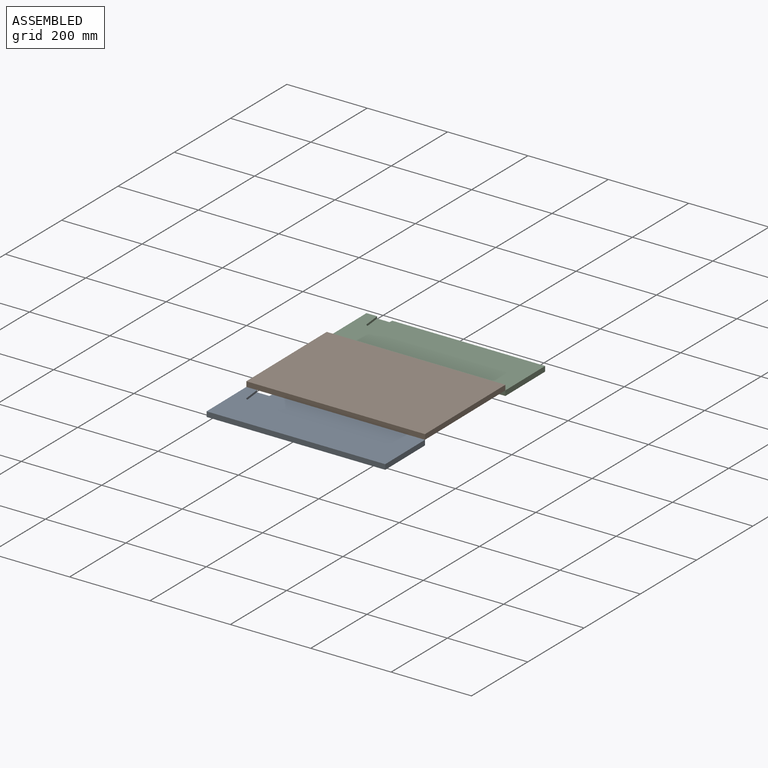
[diagram: assembled view]
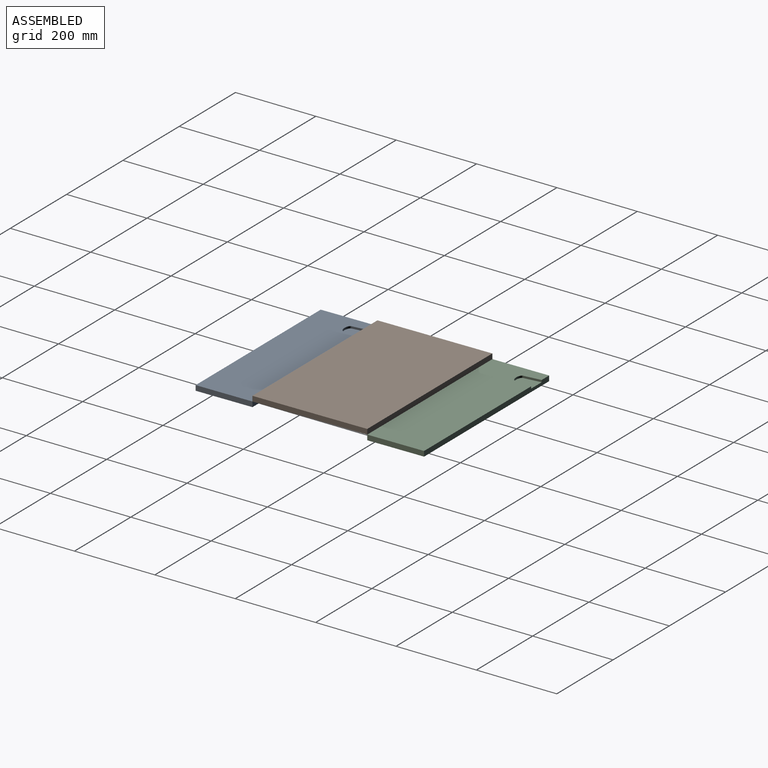
[diagram: assembled view, second angle]
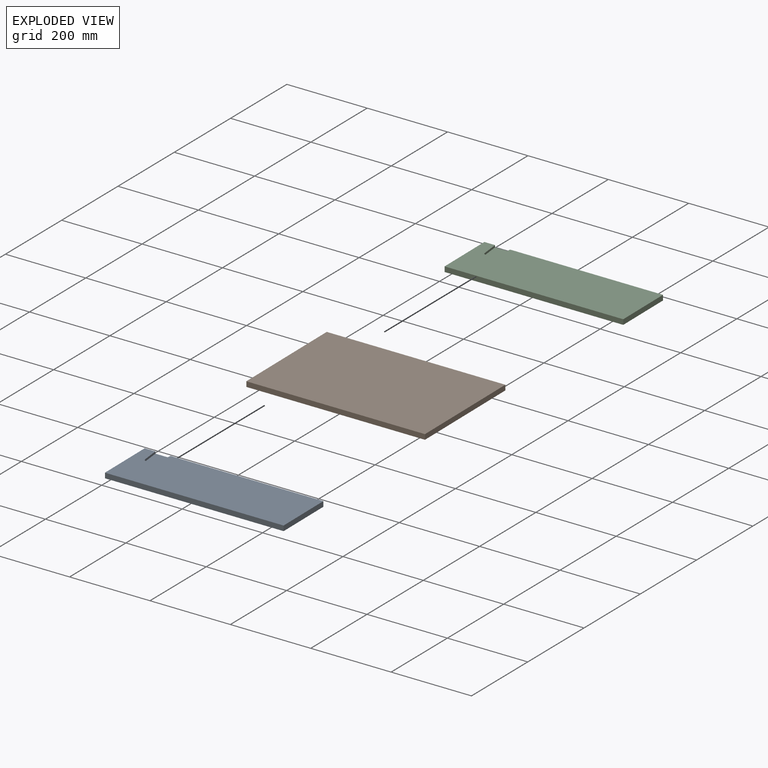
[diagram: exploded view]
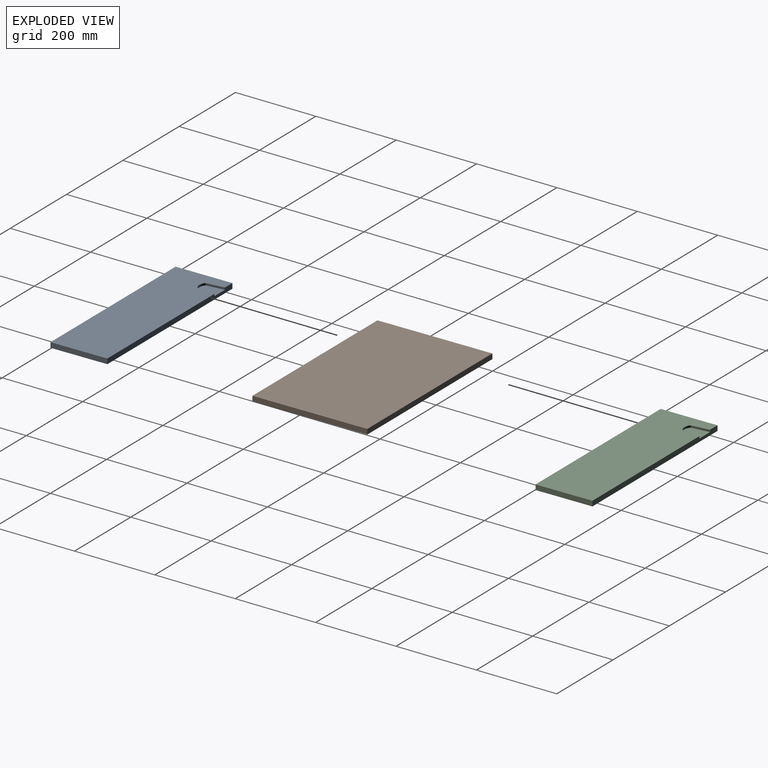
[diagram: exploded view, second angle]
ASSEMBLY  parts=3 mates=2
PART A: 12 faces, bbox 444.5x141.3x12.7 mm
  f0: plane 444.5x12.7mm, normal (0,1,0), area 5454.5mm2, adj f1,f2,f4,f5,f6,f7,f8
  f1: plane 444.5x141.29mm, normal (0,0,1), area 61210.8mm2, adj f0,f2,f3,f4,f6,f7,f9,f10
  f2: plane 141.29x12.7mm, normal (-1,0,0), area 1794.4mm2, adj f0,f1,f3,f5
  f3: plane 444.5x12.7mm, normal (0,-1,0), area 5645.2mm2, adj f1,f2,f4,f5
  f4: plane 141.29x12.7mm, normal (1,0,0), area 1794.4mm2, adj f0,f1,f3,f5
  f5: plane 444.5x141.29mm, normal (0,0,-1), area 62802.3mm2, adj f0,f2,f3,f4
  f6: plane 42.65x5.08mm, normal (-1,0.1,0), area 217.8mm2, adj f0,f1,f8,f10
  f7: plane 42.65x5.08mm, normal (0.99,0.1,0), area 217.8mm2, adj f0,f1,f8,f11
  f8: plane 50.29x37.52mm, normal (0,0,1), area 1591.5mm2, adj f0,f6,f7,f9,f10,f11
  f9: cylinder r=24.62mm len=22mm, axis (0,0,1), area 115.9mm2, adj f1,f8,f10,f11
  f10: cylinder r=6.35mm len=5.08mm, axis (0,0,1), area 32.5mm2, adj f1,f6,f8,f9
  f11: cylinder r=6.35mm len=5.08mm, axis (0,0,1), area 32.5mm2, adj f1,f7,f8,f9
PART B: 6 faces, bbox 444.5x285.8x12.7 mm
  f0: plane 444.5x12.7mm, normal (0,1,0), area 5645.2mm2, adj f1,f3,f4,f5
  f1: plane 285.75x12.7mm, normal (-1,0,0), area 3629mm2, adj f0,f2,f4,f5
  f2: plane 444.5x12.7mm, normal (0,-1,0), area 5645.2mm2, adj f1,f3,f4,f5
  f3: plane 285.75x12.7mm, normal (1,0,0), area 3629mm2, adj f0,f2,f4,f5
  f4: plane 444.5x285.75mm, normal (0,0,1), area 127015.9mm2, adj f0,f1,f2,f3
  f5: plane 444.5x285.75mm, normal (0,0,-1), area 127015.9mm2, adj f0,f1,f2,f3
PART C: same geometry as A
PLACE A rot(axis=(1,0,0),0.4deg) t=(0,-86.18,-19.77)mm
PLACE B rot(axis=(1,0,0),0.4deg) t=(0,-86.18,-19.77)mm
PLACE C rot(axis=(1,0,0),0.4deg) t=(0,340.85,-16.87)mm
MATE planar B.f2 <-> A.f0  axis (0,-1,-0.01) through (222.25,-86.22,-13.42)mm
MATE planar C.f3 <-> B.f0  axis (0,-1,-0.01) through (222.25,199.61,-24.18)mm
